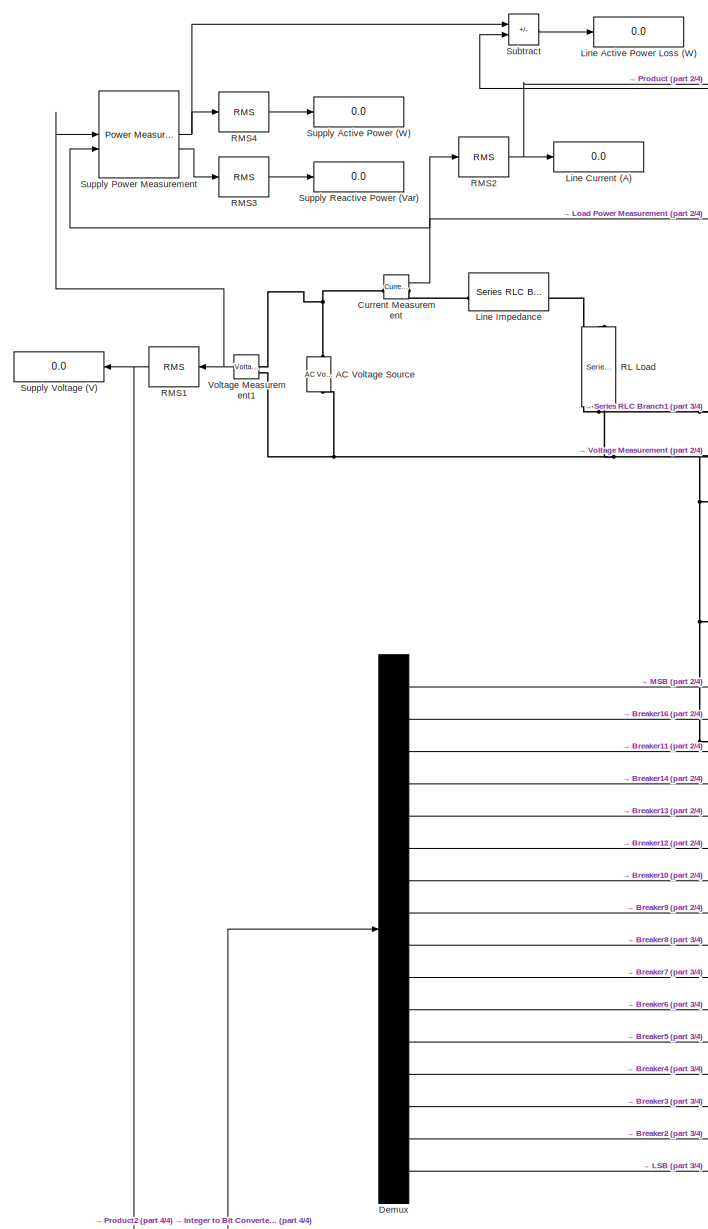
[diagram: root canvas - part 1/4, top left region]
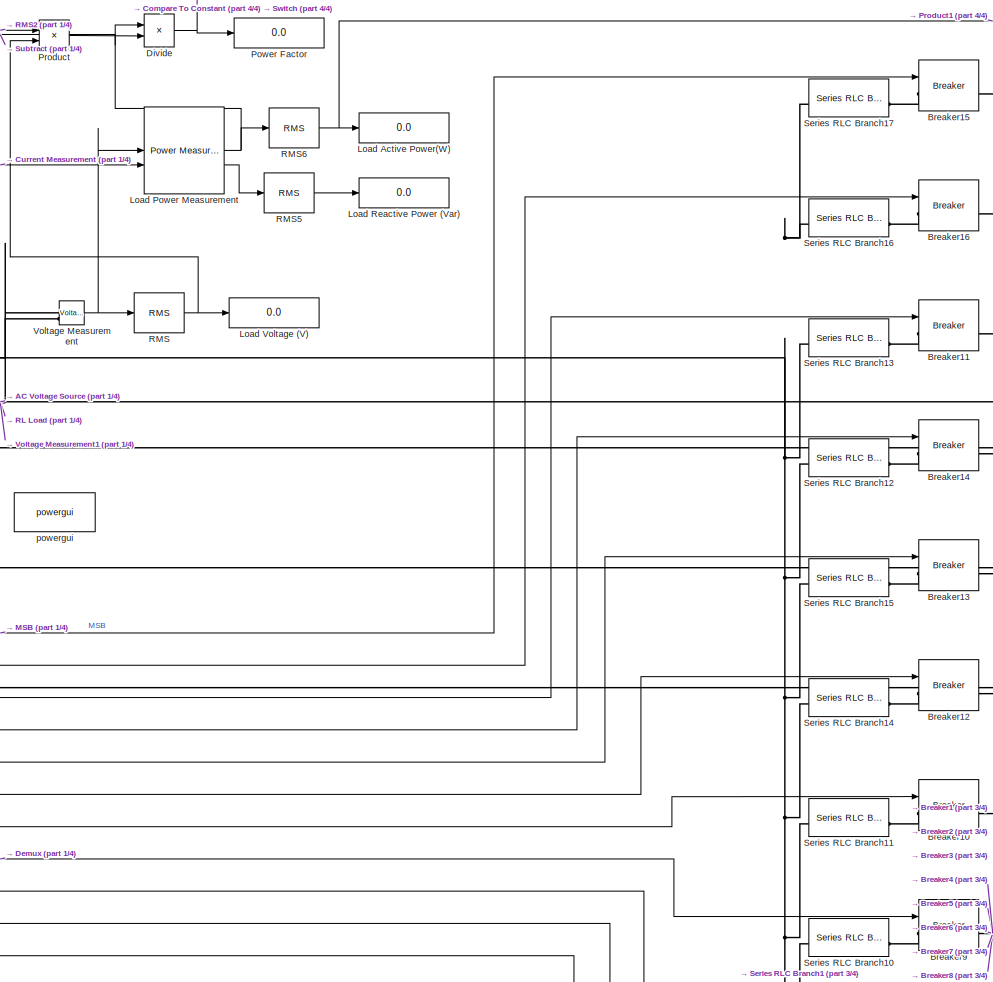
[diagram: root canvas - part 2/4, top center region]
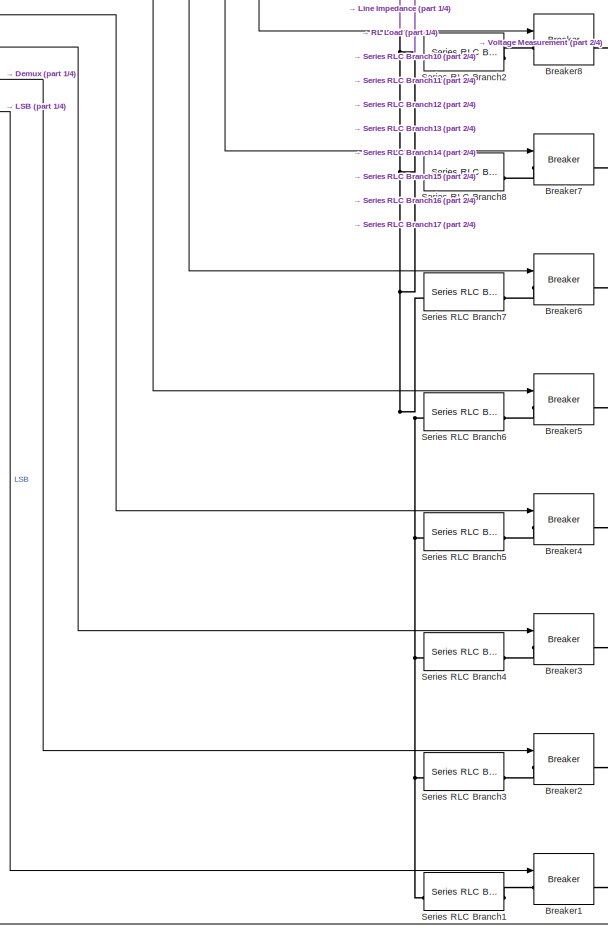
[diagram: root canvas - part 3/4, middle right region]
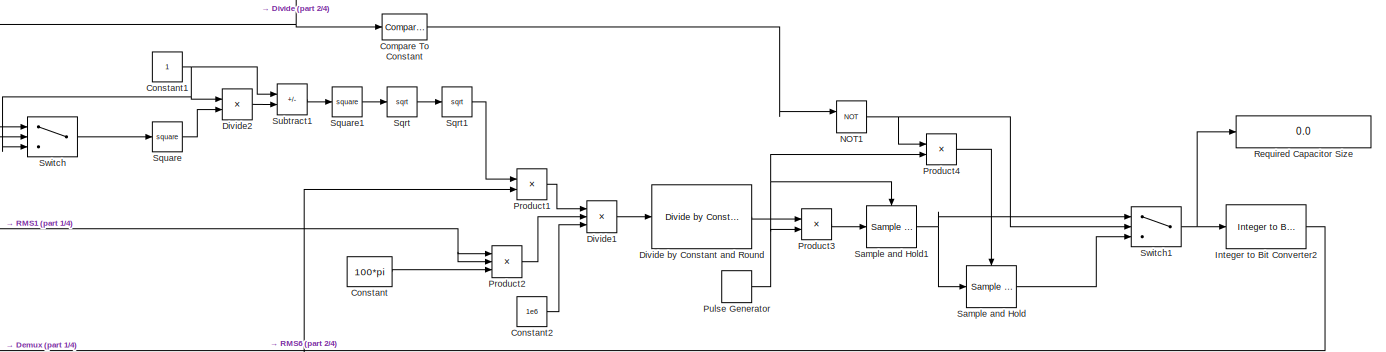
[diagram: root canvas - part 4/4, full width, bottom band]
MODEL slx_1e68358847b4
KIND model
CONFIG AbsTol = auto
CONFIG EnableMultiTasking = off
CONFIG FixedStep = auto
CONFIG MaxStep = auto
CONFIG MinStep = auto
CONFIG RelTol = 1e-3
CONFIG SampleTimeConstraint = Unconstrained
CONFIG SolverName = VariableStepAuto
CONFIG StartTime = 0.0
CONFIG StopTime = 10
BLOCK [Reference] AC Voltage Source  REF=spsACVoltageSourceLib/AC Voltage Source
  LibrarySourceBlock = sps_lib/Sources/AC Voltage Source
  NameLocation = right
  SourceBlock = spsACVoltageSourceLib/AC Voltage Source
  SourceType = AC Voltage Source
BLOCK [Reference] Breaker1  REF=spsBreakerLib/Breaker
  LibrarySourceBlock = sps_lib/Power Grid Elements/Breaker
  SourceBlock = spsBreakerLib/Breaker
  SourceType = Breaker
BLOCK [Reference] Breaker10  REF=spsBreakerLib/Breaker
  LibrarySourceBlock = sps_lib/Power Grid Elements/Breaker
  SourceBlock = spsBreakerLib/Breaker
  SourceType = Breaker
BLOCK [Reference] Breaker11  REF=spsBreakerLib/Breaker
  LibrarySourceBlock = sps_lib/Power Grid Elements/Breaker
  SourceBlock = spsBreakerLib/Breaker
  SourceType = Breaker
BLOCK [Reference] Breaker12  REF=spsBreakerLib/Breaker
  LibrarySourceBlock = sps_lib/Power Grid Elements/Breaker
  SourceBlock = spsBreakerLib/Breaker
  SourceType = Breaker
BLOCK [Reference] Breaker13  REF=spsBreakerLib/Breaker
  LibrarySourceBlock = sps_lib/Power Grid Elements/Breaker
  SourceBlock = spsBreakerLib/Breaker
  SourceType = Breaker
BLOCK [Reference] Breaker14  REF=spsBreakerLib/Breaker
  LibrarySourceBlock = sps_lib/Power Grid Elements/Breaker
  SourceBlock = spsBreakerLib/Breaker
  SourceType = Breaker
BLOCK [Reference] Breaker15  REF=spsBreakerLib/Breaker
  LibrarySourceBlock = sps_lib/Power Grid Elements/Breaker
  SourceBlock = spsBreakerLib/Breaker
  SourceType = Breaker
BLOCK [Reference] Breaker16  REF=spsBreakerLib/Breaker
  LibrarySourceBlock = sps_lib/Power Grid Elements/Breaker
  SourceBlock = spsBreakerLib/Breaker
  SourceType = Breaker
BLOCK [Reference] Breaker2  REF=spsBreakerLib/Breaker
  LibrarySourceBlock = sps_lib/Power Grid Elements/Breaker
  SourceBlock = spsBreakerLib/Breaker
  SourceType = Breaker
BLOCK [Reference] Breaker3  REF=spsBreakerLib/Breaker
  LibrarySourceBlock = sps_lib/Power Grid Elements/Breaker
  SourceBlock = spsBreakerLib/Breaker
  SourceType = Breaker
BLOCK [Reference] Breaker4  REF=spsBreakerLib/Breaker
  LibrarySourceBlock = sps_lib/Power Grid Elements/Breaker
  SourceBlock = spsBreakerLib/Breaker
  SourceType = Breaker
BLOCK [Reference] Breaker5  REF=spsBreakerLib/Breaker
  LibrarySourceBlock = sps_lib/Power Grid Elements/Breaker
  SourceBlock = spsBreakerLib/Breaker
  SourceType = Breaker
BLOCK [Reference] Breaker6  REF=spsBreakerLib/Breaker
  LibrarySourceBlock = sps_lib/Power Grid Elements/Breaker
  SourceBlock = spsBreakerLib/Breaker
  SourceType = Breaker
BLOCK [Reference] Breaker7  REF=spsBreakerLib/Breaker
  LibrarySourceBlock = sps_lib/Power Grid Elements/Breaker
  SourceBlock = spsBreakerLib/Breaker
  SourceType = Breaker
BLOCK [Reference] Breaker8  REF=spsBreakerLib/Breaker
  LibrarySourceBlock = sps_lib/Power Grid Elements/Breaker
  SourceBlock = spsBreakerLib/Breaker
  SourceType = Breaker
BLOCK [Reference] Breaker9  REF=spsBreakerLib/Breaker
  LibrarySourceBlock = sps_lib/Power Grid Elements/Breaker
  SourceBlock = spsBreakerLib/Breaker
  SourceType = Breaker
BLOCK [Reference] Compare To Constant  REF=simulink/Logic and Bit
Operations/Compare
To Constant
  SourceBlock = simulink/Logic and Bit\nOperations/Compare\nTo Constant
  SourceType = Compare To Constant
BLOCK [Constant] Constant
  Value = 100*pi
BLOCK [Constant] Constant1
BLOCK [Constant] Constant2
  Value = 1e6
BLOCK [Reference] Current Measurement  REF=spsCurrentMeasurementLib/Current Measurement
  LibrarySourceBlock = sps_lib/Sensors and Measurements/Current Measurement
  SourceBlock = spsCurrentMeasurementLib/Current Measurement
  SourceType = Current Measurement
  UserDataPersistent = on
BLOCK [Demux] Demux
  Outputs = 16
BLOCK [Product] Divide
  Inputs = */
  RndMeth = Zero
  SaturateOnIntegerOverflow = on
BLOCK [Reference] Divide by Constant and Round  REF=embmathops/Divide by Constant and Round
  LibrarySourceBlock = embeddedMathLib/Divide by Constant and Round
  SourceBlock = embmathops/Divide by Constant and Round
  SourceType = fixed.system.DivideByConstantAndRound
BLOCK [Product] Divide1
  Inputs = */*
BLOCK [Product] Divide2
  Inputs = */
BLOCK [Reference] Integer to Bit Converter2  REF=simulink/Logic and Bit
Operations/Integer to Bit
Converter
  SourceBlock = simulink/Logic and Bit\nOperations/Integer to Bit\nConverter
  SourceType = Integer to Bit Converter
BLOCK [Display] Line Active Power Loss (W)
  Decimation = 1
BLOCK [Display] Line Current (A)
  Decimation = 1
  Format = bank
BLOCK [Reference] Line Impedance  REF=spsSeriesRLCBranchLib/Series RLC Branch
  LibrarySourceBlock = sps_lib/Passives/Series RLC Branch
  SourceBlock = spsSeriesRLCBranchLib/Series RLC Branch
  SourceType = Series RLC Branch
BLOCK [Display] Load Active Power(W)
  Decimation = 1
  Format = bank
BLOCK [Reference] Load Power Measurement  REF=eePowerMeasurement/Power
Measurement
  LibrarySourceBlock = ee_sl_lib/Measurements/Power\nMeasurement
  SourceBlock = eePowerMeasurement/Power\nMeasurement
  SourceType = Power Measurement
BLOCK [Display] Load Reactive Power (Var)
  Decimation = 1
  Format = bank
BLOCK [Display] Load Voltage (V)
  Decimation = 1
  Format = bank
BLOCK [Logic] NOT1
  AllPortsSameDT = off
  IconShape = distinctive
  Operator = NOT
  OutDataTypeStr = boolean
BLOCK [Display] Power Factor
  Decimation = 1
  Format = long
BLOCK [Product] Product
BLOCK [Product] Product1
BLOCK [Product] Product2
  Inputs = 3
BLOCK [Product] Product3
BLOCK [Product] Product4
BLOCK [DiscretePulseGenerator] Pulse Generator
  Period = 0.5
  PhaseDelay = 0.5
  PulseType = Time based
  PulseWidth = 0.1
BLOCK [Reference] RL Load  REF=spsSeriesRLCLoadLib/Series RLC Load
  AttributesFormatString = \n
  LibrarySourceBlock = sps_lib/Passives/Series RLC Load
  NameLocation = left
  SourceBlock = spsSeriesRLCLoadLib/Series RLC Load
  SourceType = Series RLC Load
BLOCK [Reference] RMS  REF=spsRMSLib/RMS
  LibrarySourceBlock = sps_lib/Sensors and Measurements/RMS
  SourceBlock = spsRMSLib/RMS
  SourceType = RMS
BLOCK [Reference] RMS1  REF=spsRMSLib/RMS
  LibrarySourceBlock = sps_lib/Sensors and Measurements/RMS
  SourceBlock = spsRMSLib/RMS
  SourceType = RMS
BLOCK [Reference] RMS2  REF=spsRMSLib/RMS
  LibrarySourceBlock = sps_lib/Sensors and Measurements/RMS
  SourceBlock = spsRMSLib/RMS
  SourceType = RMS
BLOCK [Reference] RMS3  REF=spsRMSLib/RMS
  LibrarySourceBlock = sps_lib/Sensors and Measurements/RMS
  SourceBlock = spsRMSLib/RMS
  SourceType = RMS
BLOCK [Reference] RMS4  REF=spsRMSLib/RMS
  LibrarySourceBlock = sps_lib/Sensors and Measurements/RMS
  SourceBlock = spsRMSLib/RMS
  SourceType = RMS
BLOCK [Reference] RMS5  REF=spsRMSLib/RMS
  LibrarySourceBlock = sps_lib/Sensors and Measurements/RMS
  SourceBlock = spsRMSLib/RMS
  SourceType = RMS
BLOCK [Reference] RMS6  REF=spsRMSLib/RMS
  LibrarySourceBlock = sps_lib/Sensors and Measurements/RMS
  SourceBlock = spsRMSLib/RMS
  SourceType = RMS
BLOCK [Display] Required Capacitor Size
  Decimation = 1
  Format = long
BLOCK [Reference] Sample and Hold  REF=dspsigops/Sample
and Hold
  SourceBlock = dspsigops/Sample\nand Hold
  SourceType = Sample and Hold
BLOCK [Reference] Sample and Hold1  REF=dspsigops/Sample
and Hold
  SourceBlock = dspsigops/Sample\nand Hold
  SourceType = Sample and Hold
BLOCK [Reference] Series RLC Branch1  REF=spsSeriesRLCBranchLib/Series RLC Branch
  LibrarySourceBlock = sps_lib/Passives/Series RLC Branch
  SourceBlock = spsSeriesRLCBranchLib/Series RLC Branch
  SourceType = Series RLC Branch
BLOCK [Reference] Series RLC Branch10  REF=spsSeriesRLCBranchLib/Series RLC Branch
  LibrarySourceBlock = sps_lib/Passives/Series RLC Branch
  SourceBlock = spsSeriesRLCBranchLib/Series RLC Branch
  SourceType = Series RLC Branch
BLOCK [Reference] Series RLC Branch11  REF=spsSeriesRLCBranchLib/Series RLC Branch
  LibrarySourceBlock = sps_lib/Passives/Series RLC Branch
  SourceBlock = spsSeriesRLCBranchLib/Series RLC Branch
  SourceType = Series RLC Branch
BLOCK [Reference] Series RLC Branch12  REF=spsSeriesRLCBranchLib/Series RLC Branch
  LibrarySourceBlock = sps_lib/Passives/Series RLC Branch
  SourceBlock = spsSeriesRLCBranchLib/Series RLC Branch
  SourceType = Series RLC Branch
BLOCK [Reference] Series RLC Branch13  REF=spsSeriesRLCBranchLib/Series RLC Branch
  LibrarySourceBlock = sps_lib/Passives/Series RLC Branch
  SourceBlock = spsSeriesRLCBranchLib/Series RLC Branch
  SourceType = Series RLC Branch
BLOCK [Reference] Series RLC Branch14  REF=spsSeriesRLCBranchLib/Series RLC Branch
  LibrarySourceBlock = sps_lib/Passives/Series RLC Branch
  SourceBlock = spsSeriesRLCBranchLib/Series RLC Branch
  SourceType = Series RLC Branch
BLOCK [Reference] Series RLC Branch15  REF=spsSeriesRLCBranchLib/Series RLC Branch
  LibrarySourceBlock = sps_lib/Passives/Series RLC Branch
  SourceBlock = spsSeriesRLCBranchLib/Series RLC Branch
  SourceType = Series RLC Branch
BLOCK [Reference] Series RLC Branch16  REF=spsSeriesRLCBranchLib/Series RLC Branch
  LibrarySourceBlock = sps_lib/Passives/Series RLC Branch
  SourceBlock = spsSeriesRLCBranchLib/Series RLC Branch
  SourceType = Series RLC Branch
BLOCK [Reference] Series RLC Branch17  REF=spsSeriesRLCBranchLib/Series RLC Branch
  LibrarySourceBlock = sps_lib/Passives/Series RLC Branch
  SourceBlock = spsSeriesRLCBranchLib/Series RLC Branch
  SourceType = Series RLC Branch
BLOCK [Reference] Series RLC Branch2  REF=spsSeriesRLCBranchLib/Series RLC Branch
  LibrarySourceBlock = sps_lib/Passives/Series RLC Branch
  SourceBlock = spsSeriesRLCBranchLib/Series RLC Branch
  SourceType = Series RLC Branch
BLOCK [Reference] Series RLC Branch3  REF=spsSeriesRLCBranchLib/Series RLC Branch
  LibrarySourceBlock = sps_lib/Passives/Series RLC Branch
  SourceBlock = spsSeriesRLCBranchLib/Series RLC Branch
  SourceType = Series RLC Branch
BLOCK [Reference] Series RLC Branch4  REF=spsSeriesRLCBranchLib/Series RLC Branch
  LibrarySourceBlock = sps_lib/Passives/Series RLC Branch
  SourceBlock = spsSeriesRLCBranchLib/Series RLC Branch
  SourceType = Series RLC Branch
BLOCK [Reference] Series RLC Branch5  REF=spsSeriesRLCBranchLib/Series RLC Branch
  LibrarySourceBlock = sps_lib/Passives/Series RLC Branch
  SourceBlock = spsSeriesRLCBranchLib/Series RLC Branch
  SourceType = Series RLC Branch
BLOCK [Reference] Series RLC Branch6  REF=spsSeriesRLCBranchLib/Series RLC Branch
  LibrarySourceBlock = sps_lib/Passives/Series RLC Branch
  SourceBlock = spsSeriesRLCBranchLib/Series RLC Branch
  SourceType = Series RLC Branch
BLOCK [Reference] Series RLC Branch7  REF=spsSeriesRLCBranchLib/Series RLC Branch
  LibrarySourceBlock = sps_lib/Passives/Series RLC Branch
  SourceBlock = spsSeriesRLCBranchLib/Series RLC Branch
  SourceType = Series RLC Branch
BLOCK [Reference] Series RLC Branch8  REF=spsSeriesRLCBranchLib/Series RLC Branch
  LibrarySourceBlock = sps_lib/Passives/Series RLC Branch
  SourceBlock = spsSeriesRLCBranchLib/Series RLC Branch
  SourceType = Series RLC Branch
BLOCK [Sqrt] Sqrt
BLOCK [Sqrt] Sqrt1
BLOCK [Math] Square
  Operator = square
BLOCK [Math] Square1
  Operator = square
BLOCK [Sum] Subtract
  IconShape = rectangular
  Inputs = +-
BLOCK [Sum] Subtract1
  IconShape = rectangular
  Inputs = -+
BLOCK [Display] Supply Active Power (W)
  Decimation = 3
  Format = bank
BLOCK [Reference] Supply Power Measurement  REF=eePowerMeasurement/Power
Measurement
  LibrarySourceBlock = ee_sl_lib/Measurements/Power\nMeasurement
  SourceBlock = eePowerMeasurement/Power\nMeasurement
  SourceType = Power Measurement
BLOCK [Display] Supply Reactive Power (Var)
  Decimation = 1
  Format = bank
BLOCK [Display] Supply Voltage (V)
  Decimation = 1
  Format = bank
BLOCK [Switch] Switch
  Criteria = u2 > Threshold
  InputSameDT = off
  SaturateOnIntegerOverflow = off
  Threshold = 0.2
BLOCK [Switch] Switch1
  Criteria = u2 > Threshold
  InputSameDT = off
  SaturateOnIntegerOverflow = off
BLOCK [Reference] Voltage Measurement  REF=spsVoltageMeasurementLib/Voltage Measurement
  LibrarySourceBlock = sps_lib/Sensors and Measurements/Voltage Measurement
  SourceBlock = spsVoltageMeasurementLib/Voltage Measurement
  SourceType = Voltage Measurement
  UserDataPersistent = on
BLOCK [Reference] Voltage Measurement1  REF=spsVoltageMeasurementLib/Voltage Measurement
  LibrarySourceBlock = sps_lib/Sensors and Measurements/Voltage Measurement
  SourceBlock = spsVoltageMeasurementLib/Voltage Measurement
  SourceType = Voltage Measurement
  UserDataPersistent = on
BLOCK [Reference] powergui  REF=sps_lib/powergui
  LibrarySourceBlock = sps_lib/powergui
  Priority = 1
  SourceBlock = sps_lib/powergui
  SourceType = PSB option menu block
LINE Compare To Constant:1 -> NOT1:1
NET Constant1:1 -> Divide2:1, Subtract1:1, Switch:3
LINE Constant2:1 -> Divide1:3
LINE Constant:1 -> Product2:3
NET Current Measurement:1 -> Load Power Measurement:2, RMS2:1, Supply Power Measurement:2
LINE Demux:1 -> Breaker15:1
LINE Demux:10 -> Breaker7:1
LINE Demux:11 -> Breaker6:1
LINE Demux:12 -> Breaker5:1
LINE Demux:13 -> Breaker4:1
LINE Demux:14 -> Breaker3:1
LINE Demux:15 -> Breaker2:1
LINE Demux:16 -> Breaker1:1
LINE Demux:2 -> Breaker16:1
LINE Demux:3 -> Breaker11:1
LINE Demux:4 -> Breaker14:1
LINE Demux:5 -> Breaker13:1
LINE Demux:6 -> Breaker12:1
LINE Demux:7 -> Breaker10:1
LINE Demux:8 -> Breaker9:1
LINE Demux:9 -> Breaker8:1
LINE Divide by Constant and Round:1 -> Product3:1
LINE Divide1:1 -> Divide by Constant and Round:1
LINE Divide2:1 -> Subtract1:2
NET Divide:1 -> Compare To Constant:1, Power Factor:1, Switch:1, Switch:2
LINE Integer to Bit Converter2:1 -> Demux:1
NET Load Power Measurement:1 -> Divide:1, RMS6:1, Subtract:2
LINE Load Power Measurement:2 -> RMS5:1
NET NOT1:1 -> Product4:1, Switch1:2
LINE Product1:1 -> Divide1:1
LINE Product2:1 -> Divide1:2
LINE Product3:1 -> Sample and Hold1:1
LINE Product4:1 -> Sample and Hold:trigger
LINE Product:1 -> Divide:2
NET Pulse Generator:1 -> Product3:2, Product4:2, Sample and Hold1:trigger
NET RMS1:1 -> Product2:1, Product2:2, Supply Voltage (V):1
NET RMS2:1 -> Line Current (A):1, Product:1
LINE RMS3:1 -> Supply Reactive Power (Var):1
LINE RMS4:1 -> Supply Active Power (W):1
LINE RMS5:1 -> Load Reactive Power (Var):1
NET RMS6:1 -> Load Active Power(W):1, Product1:2
NET RMS:1 -> Load Voltage (V):1, Product:2
NET Sample and Hold1:1 -> Sample and Hold:1, Switch1:1
LINE Sample and Hold:1 -> Switch1:3
LINE Sqrt1:1 -> Product1:1
LINE Sqrt:1 -> Sqrt1:1
LINE Square1:1 -> Sqrt:1
LINE Square:1 -> Divide2:2
LINE Subtract1:1 -> Square1:1
LINE Subtract:1 -> Line Active Power Loss (W):1
NET Supply Power Measurement:1 -> RMS4:1, Subtract:1
LINE Supply Power Measurement:2 -> RMS3:1
NET Switch1:1 -> Integer to Bit Converter2:1, Required Capacitor Size:1
LINE Switch:1 -> Square:1
NET Voltage Measurement1:1 -> RMS1:1, Supply Power Measurement:1
NET Voltage Measurement:1 -> Load Power Measurement:1, RMS:1
PNET net1: AC Voltage Source:LConn1 -- Breaker10:RConn1 -- Breaker11:RConn1 -- Breaker12:RConn1 -- Breaker13:RConn1 -- Breaker14:RConn1 -- Breaker15:RConn1 -- Breaker16:RConn1 -- Breaker1:RConn1 -- Breaker2:RConn1 -- Breaker3:RConn1 -- Breaker4:RConn1 -- Breaker5:RConn1 -- Breaker6:RConn1 -- Breaker7:RConn1 -- Breaker8:RConn1 -- Breaker9:RConn1 -- RL Load:RConn1 -- Voltage Measurement1:LConn2 -- Voltage Measurement:LConn2
PNET net2: AC Voltage Source:RConn1 -- Current Measurement:LConn1 -- Voltage Measurement1:LConn1
PLINE Breaker10:LConn1 -- Series RLC Branch11:RConn1
PLINE Breaker11:LConn1 -- Series RLC Branch13:RConn1
PLINE Breaker12:LConn1 -- Series RLC Branch14:RConn1
PLINE Breaker13:LConn1 -- Series RLC Branch15:RConn1
PLINE Breaker14:LConn1 -- Series RLC Branch12:RConn1
PLINE Breaker15:LConn1 -- Series RLC Branch17:RConn1
PLINE Breaker16:LConn1 -- Series RLC Branch16:RConn1
PLINE Breaker1:LConn1 -- Series RLC Branch1:RConn1
PLINE Breaker2:LConn1 -- Series RLC Branch3:RConn1
PLINE Breaker3:LConn1 -- Series RLC Branch4:RConn1
PLINE Breaker4:LConn1 -- Series RLC Branch5:RConn1
PLINE Breaker5:LConn1 -- Series RLC Branch6:RConn1
PLINE Breaker6:LConn1 -- Series RLC Branch7:RConn1
PLINE Breaker7:LConn1 -- Series RLC Branch8:RConn1
PLINE Breaker8:LConn1 -- Series RLC Branch2:RConn1
PLINE Breaker9:LConn1 -- Series RLC Branch10:RConn1
PLINE Current Measurement:RConn1 -- Line Impedance:LConn1
PNET net3: Line Impedance:RConn1 -- RL Load:LConn1 -- Series RLC Branch10:LConn1 -- Series RLC Branch11:LConn1 -- Series RLC Branch12:LConn1 -- Series RLC Branch13:LConn1 -- Series RLC Branch14:LConn1 -- Series RLC Branch15:LConn1 -- Series RLC Branch16:LConn1 -- Series RLC Branch17:LConn1 -- Series RLC Branch1:LConn1 -- Series RLC Branch2:LConn1 -- Series RLC Branch3:LConn1 -- Series RLC Branch4:LConn1 -- Series RLC Branch5:LConn1 -- Series RLC Branch6:LConn1 -- Series RLC Branch7:LConn1 -- Series RLC Branch8:LConn1 -- Voltage Measurement:LConn1
note: NET lines group one-source signal fan-out (src -> all destinations, sorted); 1:1 wires keep LINE; PNET lines group multi-terminal physical nets as a canonical sorted terminal list (undirected conserving connections); 2-terminal nets keep the pairwise PLINE form
